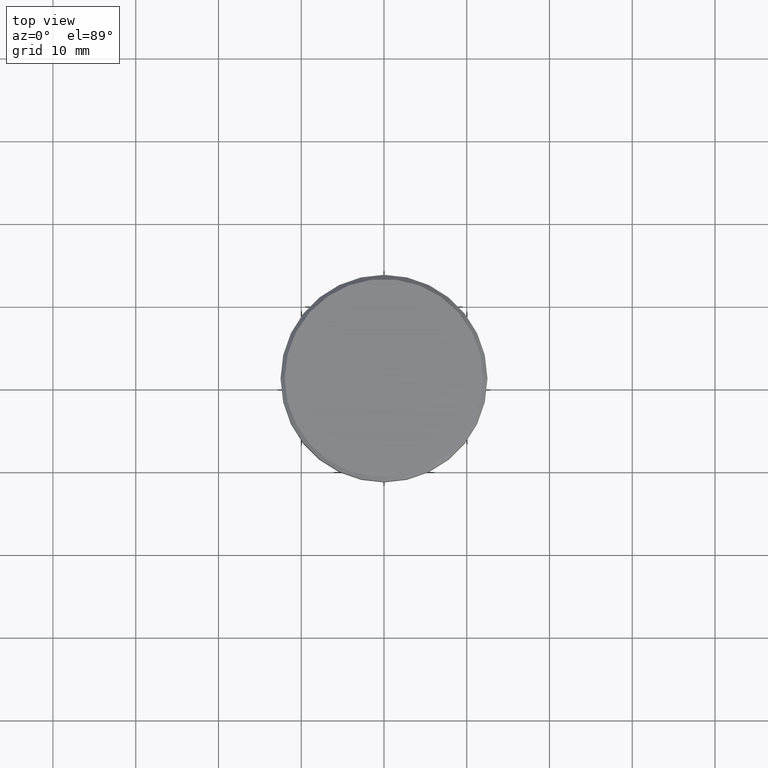
[diagram: clean part render]
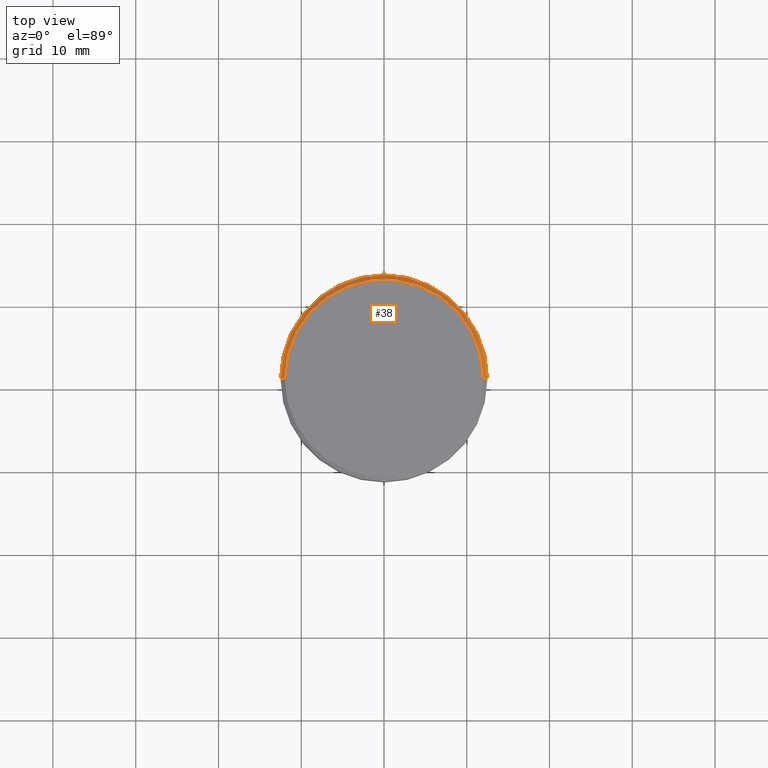
[diagram: same view with one face highlighted and labeled with its STEP entity id]
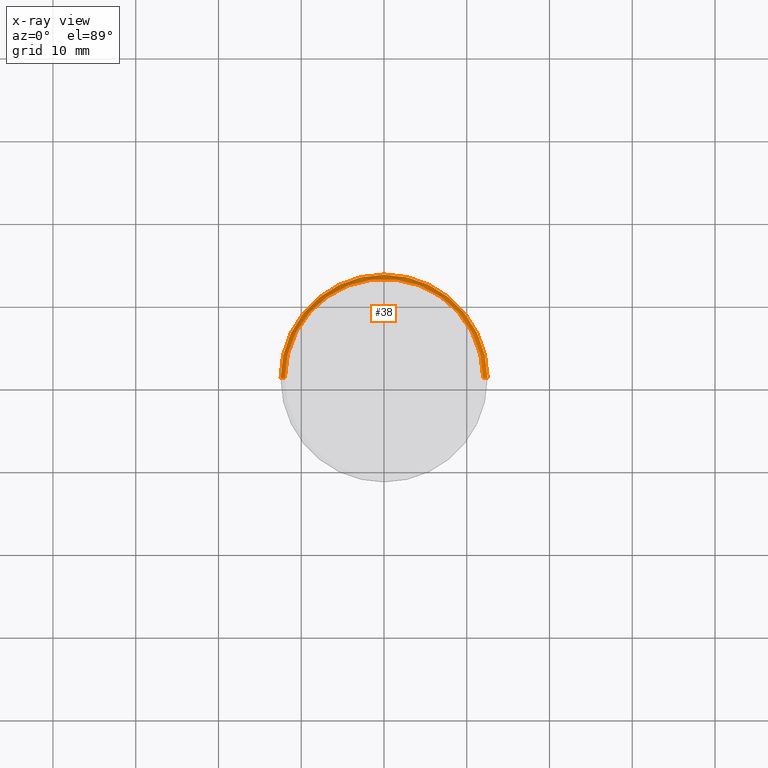
[diagram: x-ray of the same camera — body ghosted, the highlighted face saturated]
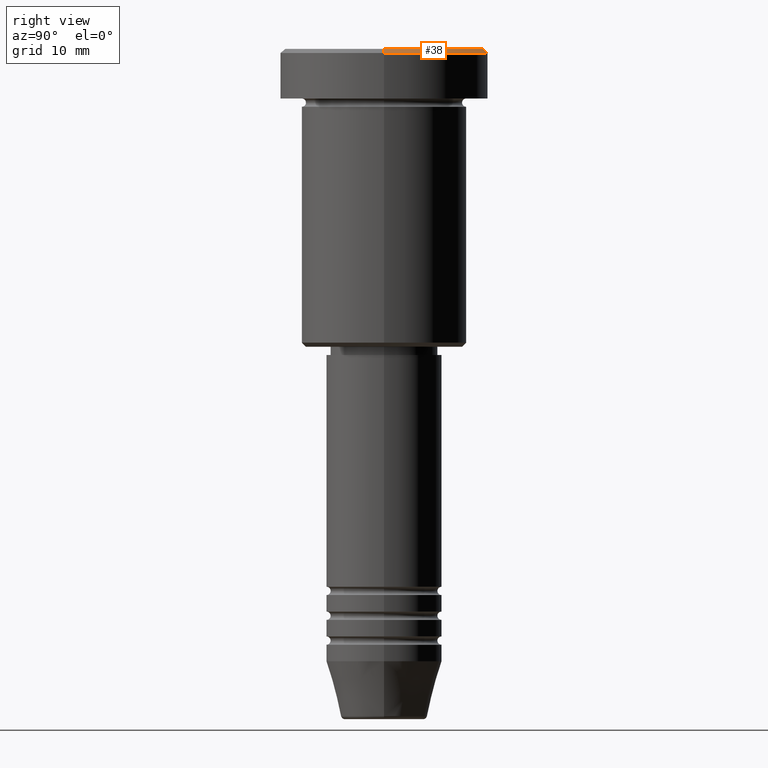
[diagram: same view with one face highlighted and labeled with its STEP entity id]
A machine part, top view. The second image highlights one B-rep face of the part: STEP entity #38.
The next image is the same camera in x-ray: the body ghosted, the highlighted face saturated — about 0% of this face is hidden behind the body in this view.
A second angle (right view) of the same face is appended — the face is thin or edge-on in the first view.
In plain terms, the highlighted conical surface has half-angle 45 deg.
Its self-contained STEP definition (entity closure, byte-faithful):
#38 = ADVANCED_FACE ( 'NONE', ( #44 ), #1145, .T. ) ;
#44 = FACE_OUTER_BOUND ( 'NONE', #878, .T. ) ;
#53 = DIRECTION ( 'NONE',  ( -1.000000000000000000, 0.000000000000000000, 0.000000000000000000 ) ) ;
#148 = ORIENTED_EDGE ( 'NONE', *, *, #290, .F. ) ;
#157 = CARTESIAN_POINT ( 'NONE',  ( 0.000000000000000000, 0.000000000000000000, 0.000000000000000000 ) ) ;
#199 = AXIS2_PLACEMENT_3D ( 'NONE', #225, #498, #243 ) ;
#207 = EDGE_CURVE ( 'NONE', #921, #394, #733, .T. ) ;
#225 = CARTESIAN_POINT ( 'NONE',  ( 0.000000000000000000, 0.000000000000000000, -0.5000000000000056621 ) ) ;
#243 = DIRECTION ( 'NONE',  ( 1.000000000000000000, 0.000000000000000000, 0.000000000000000000 ) ) ;
#249 = VERTEX_POINT ( 'NONE', #642 ) ;
#252 = CARTESIAN_POINT ( 'NONE',  ( 11.99999999999999645, 1.500192328955507537E-15, 0.000000000000000000 ) ) ;
#280 = EDGE_CURVE ( 'NONE', #743, #394, #812, .T. ) ;
#290 = EDGE_CURVE ( 'NONE', #249, #743, #1155, .T. ) ;
#394 = VERTEX_POINT ( 'NONE', #870 ) ;
#396 = ORIENTED_EDGE ( 'NONE', *, *, #280, .F. ) ;
#493 = ORIENTED_EDGE ( 'NONE', *, *, #799, .F. ) ;
#498 = DIRECTION ( 'NONE',  ( 0.000000000000000000, 0.000000000000000000, -1.000000000000000000 ) ) ;
#502 = AXIS2_PLACEMENT_3D ( 'NONE', #157, #508, #53 ) ;
#508 = DIRECTION ( 'NONE',  ( 0.000000000000000000, 0.000000000000000000, -1.000000000000000000 ) ) ;
#530 = CARTESIAN_POINT ( 'NONE',  ( -11.99999999999999645, 0.000000000000000000, 0.000000000000000000 ) ) ;
#561 = VECTOR ( 'NONE', #704, 1000.000000000000000 ) ;
#579 = CIRCLE ( 'NONE', #986, 11.99999999999999645 ) ;
#642 = CARTESIAN_POINT ( 'NONE',  ( -11.99999999999999645, 0.000000000000000000, 0.000000000000000000 ) ) ;
#704 = DIRECTION ( 'NONE',  ( -0.7071067811865463515, 0.000000000000000000, -0.7071067811865487940 ) ) ;
#733 = LINE ( 'NONE', #1084, #748 ) ;
#743 = VERTEX_POINT ( 'NONE', #819 ) ;
#745 = CARTESIAN_POINT ( 'NONE',  ( 0.000000000000000000, 0.000000000000000000, 0.000000000000000000 ) ) ;
#748 = VECTOR ( 'NONE', #1175, 1000.000000000000000 ) ;
#799 = EDGE_CURVE ( 'NONE', #921, #249, #579, .T. ) ;
#812 = CIRCLE ( 'NONE', #199, 12.50000000000000000 ) ;
#819 = CARTESIAN_POINT ( 'NONE',  ( -12.50000000000000000, 1.530808498934191521E-15, -0.5000000000000056621 ) ) ;
#870 = CARTESIAN_POINT ( 'NONE',  ( 12.50000000000000000, 0.000000000000000000, -0.5000000000000056621 ) ) ;
#878 = EDGE_LOOP ( 'NONE', ( #493, #1066, #396, #148 ) ) ;
#921 = VERTEX_POINT ( 'NONE', #252 ) ;
#986 = AXIS2_PLACEMENT_3D ( 'NONE', #745, #1097, #1101 ) ;
#1066 = ORIENTED_EDGE ( 'NONE', *, *, #207, .T. ) ;
#1084 = CARTESIAN_POINT ( 'NONE',  ( 11.99999999999999645, 1.469576158976823553E-15, 0.000000000000000000 ) ) ;
#1097 = DIRECTION ( 'NONE',  ( -0.000000000000000000, -0.000000000000000000, 1.000000000000000000 ) ) ;
#1101 = DIRECTION ( 'NONE',  ( 1.000000000000000000, 0.000000000000000000, 0.000000000000000000 ) ) ;
#1145 = CONICAL_SURFACE ( 'NONE', #502, 11.99999999999999645, 0.7853981633974466137 ) ;
#1155 = LINE ( 'NONE', #530, #561 ) ;
#1175 = DIRECTION ( 'NONE',  ( 0.7071067811865463515, 8.659560562354919300E-17, -0.7071067811865487940 ) ) ;